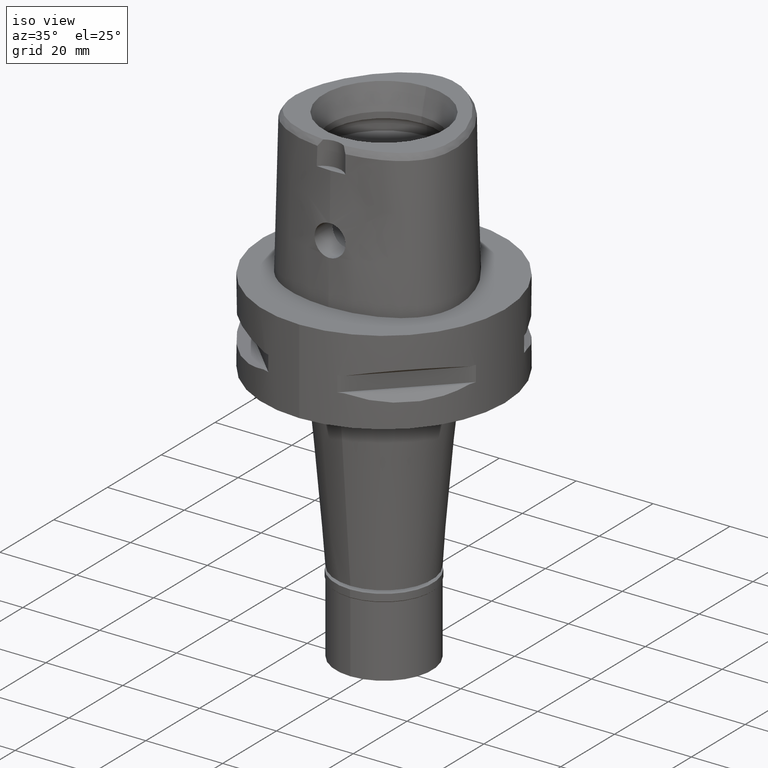
[diagram: clean part render]
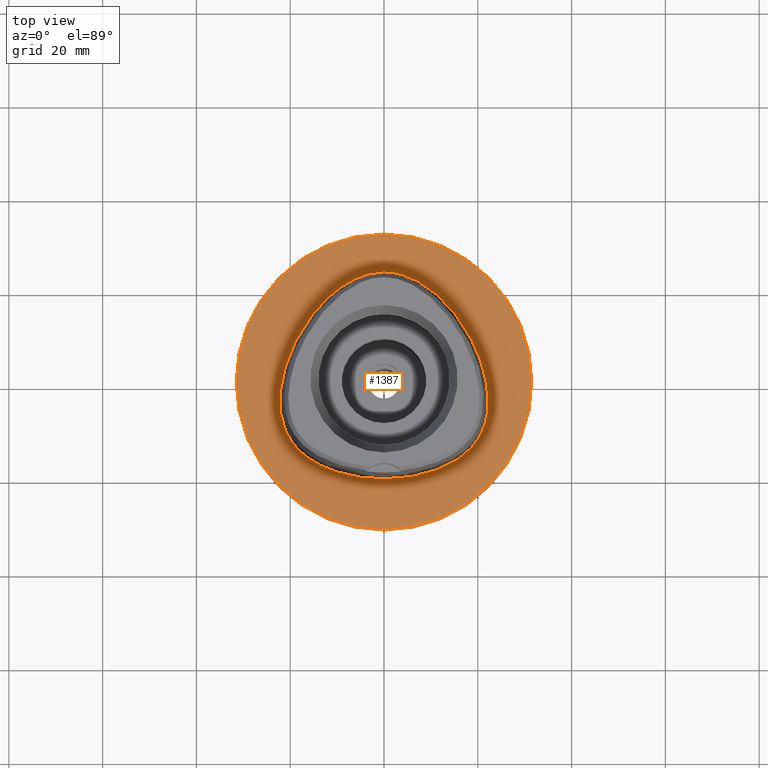
[diagram: tour spotlight — one face highlighted and labeled with its STEP entity id]
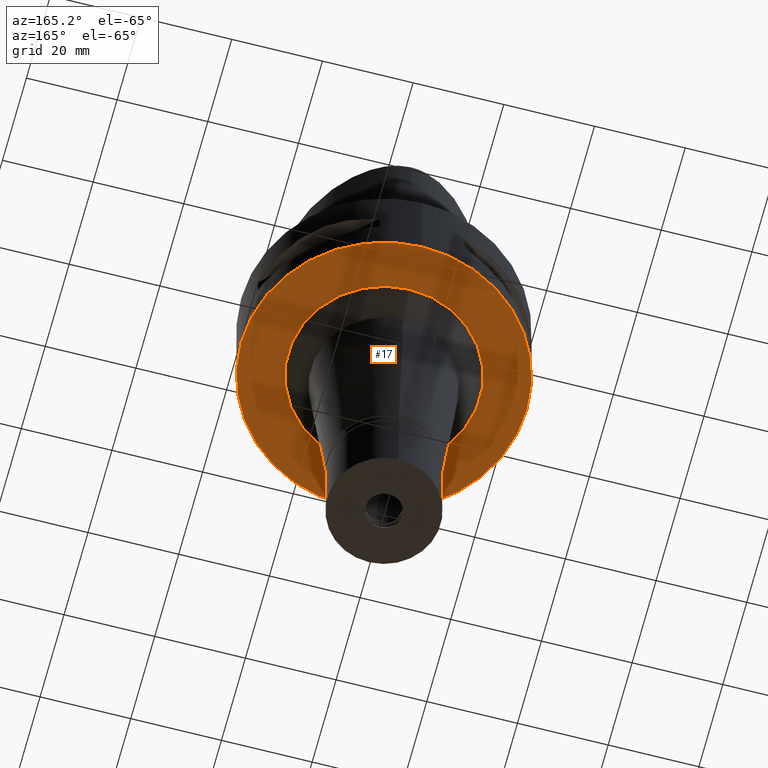
[diagram: tour spotlight — one face highlighted and labeled with its STEP entity id]
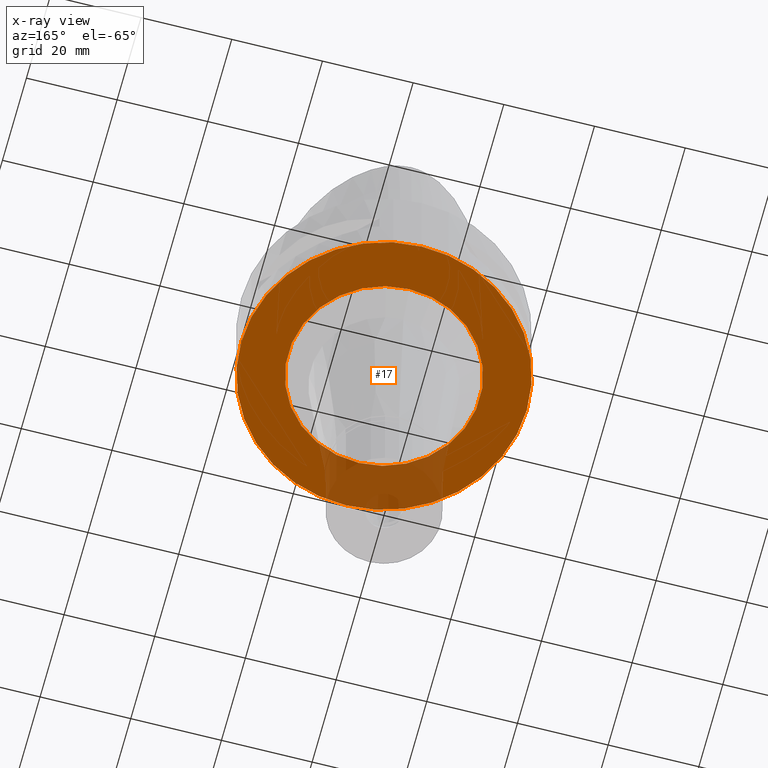
[diagram: x-ray of the same camera — body ghosted, this tour face saturated]
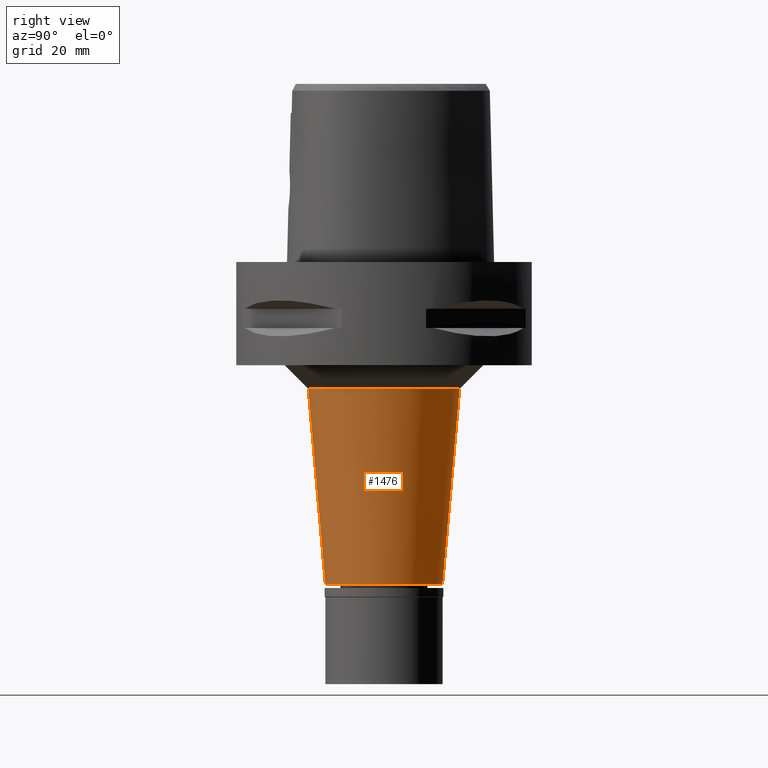
[diagram: tour spotlight — one face highlighted and labeled with its STEP entity id]
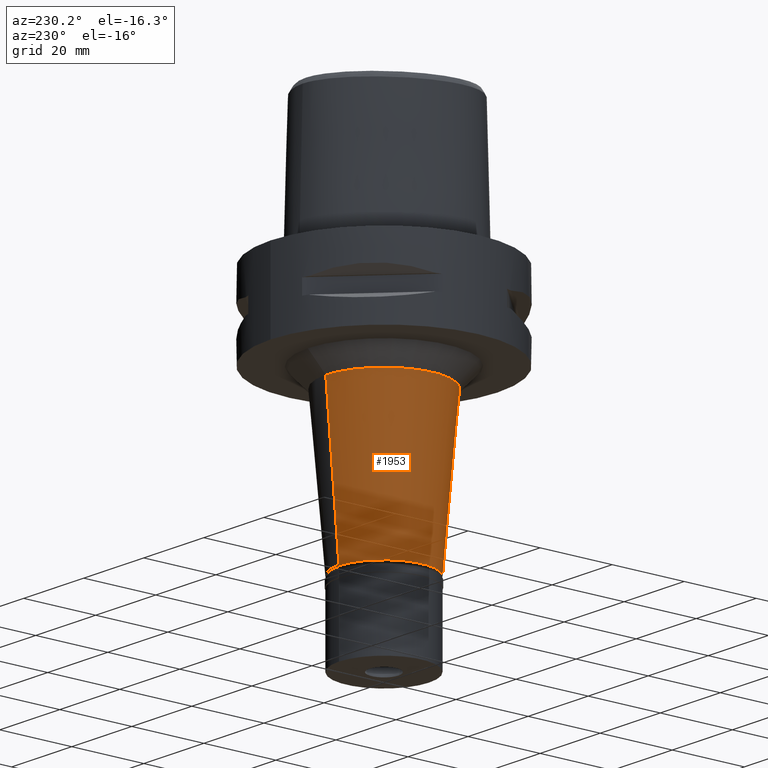
[diagram: tour spotlight — one face highlighted and labeled with its STEP entity id]
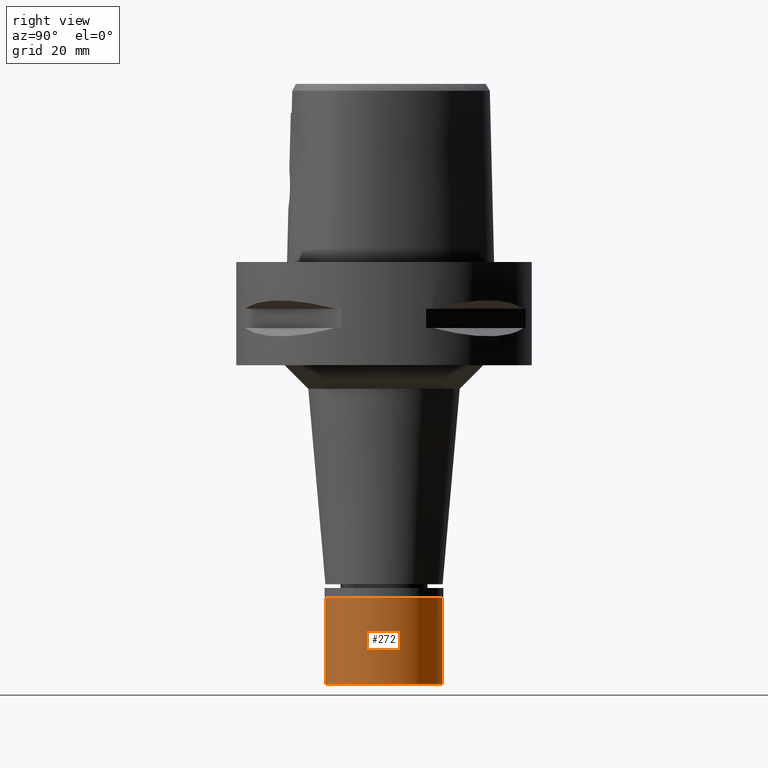
[diagram: tour spotlight — one face highlighted and labeled with its STEP entity id]
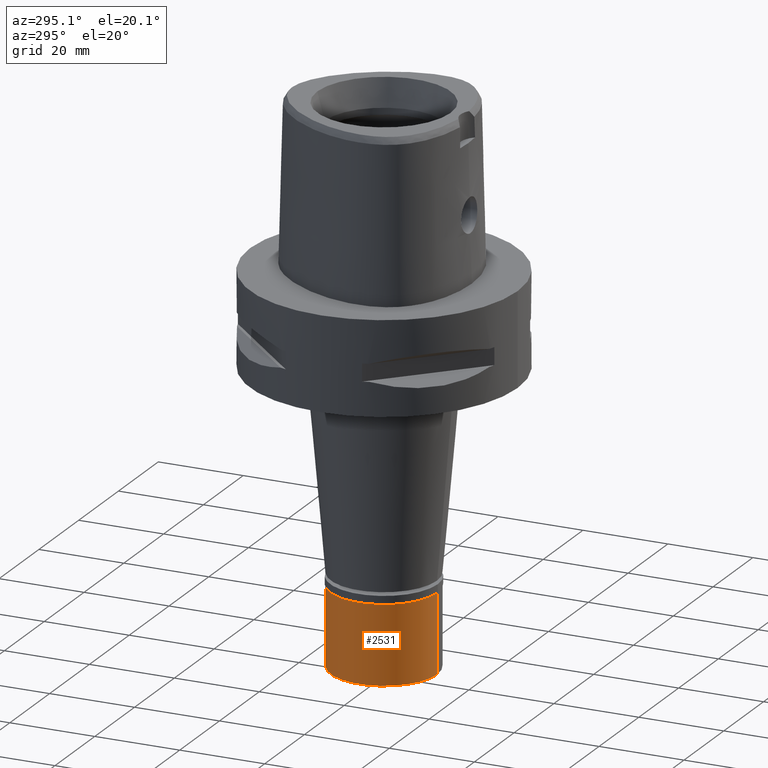
[diagram: tour spotlight — one face highlighted and labeled with its STEP entity id]
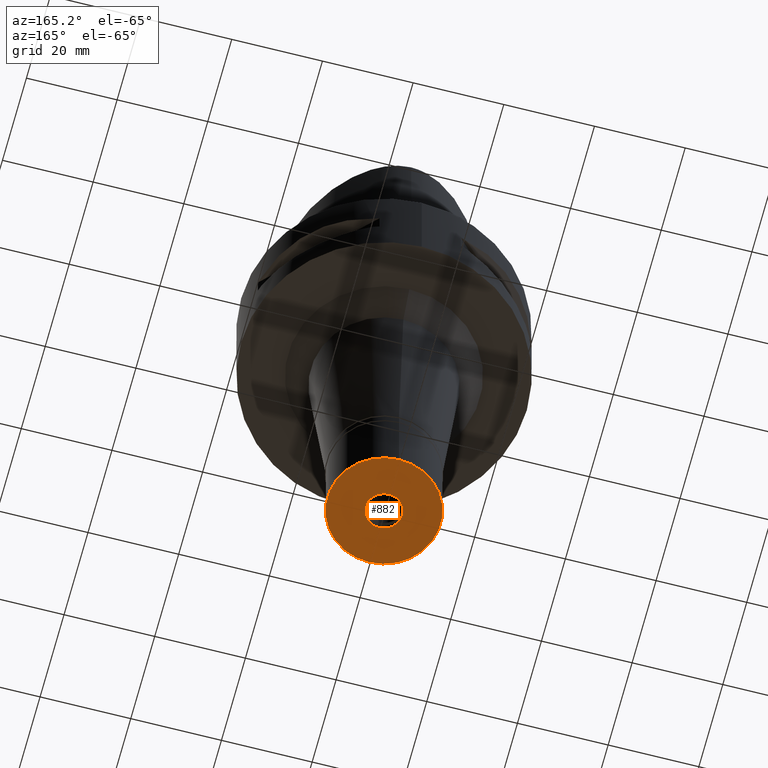
[diagram: tour spotlight — one face highlighted and labeled with its STEP entity id]
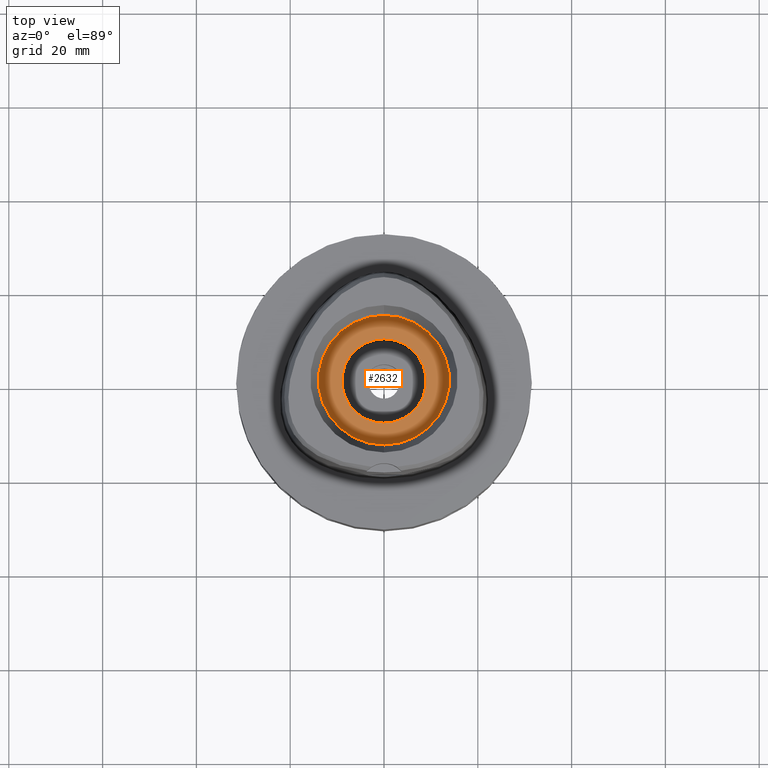
[diagram: tour spotlight — one face highlighted and labeled with its STEP entity id]
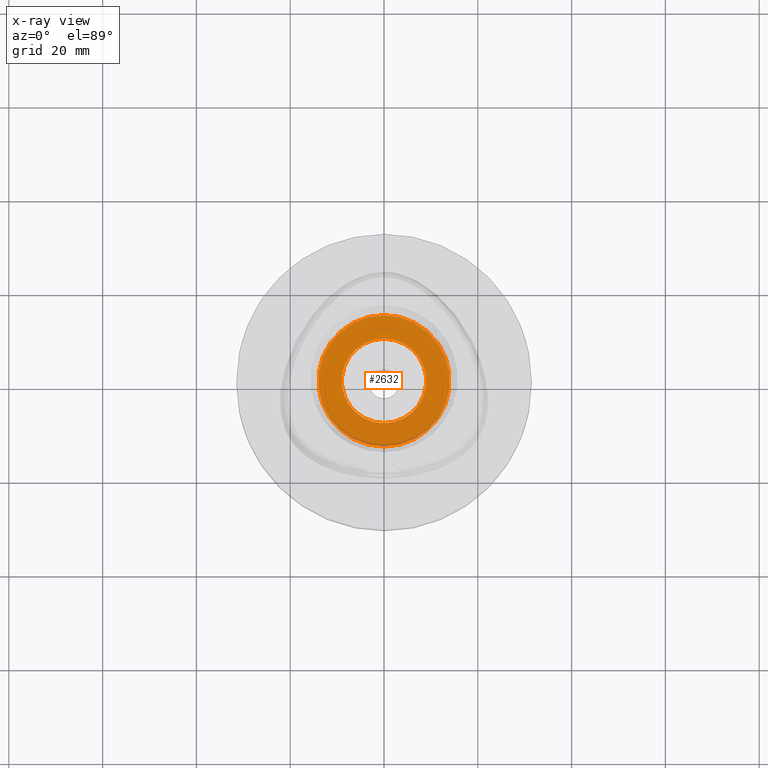
[diagram: x-ray of the same camera — body ghosted, this tour face saturated]
A machine part: a face-by-face anatomy tour. The part has 100 B-rep faces; the first image is the clean iso view, then the 8 largest visible faces are spotlighted one at a time (largest first), each with its STEP entity span.

Face 1 — top view, entity #1387. In plain terms, the highlighted planar face has unit normal (0, 0, -1).
Definition (entity closure, byte-faithful):
#38 = CARTESIAN_POINT ( 'NONE',  ( -19.64947365080064046, -12.82525390055558390, 3.868621856781100099E-07 ) ) ;
#59 = CARTESIAN_POINT ( 'NONE',  ( 16.95889173172293596, -15.67838867924317725, -3.730970698405736141E-07 ) ) ;
#102 = EDGE_CURVE ( 'NONE', #4954, #4689, #4805, .T. ) ;
#184 = DIRECTION ( 'NONE',  ( 0.0000000000000000000, 0.0000000000000000000, -1.000000000000000000 ) ) ;
#234 = FACE_OUTER_BOUND ( 'NONE', #410, .T. ) ;
#410 = EDGE_LOOP ( 'NONE', ( #483, #1833 ) ) ;
#422 = CARTESIAN_POINT ( 'NONE',  ( -14.67337963939701062, -17.21410155407379250, 3.868621856781100099E-07 ) ) ;
#449 = CARTESIAN_POINT ( 'NONE',  ( -20.93173251326372153, -10.60431640231872663, 3.868621856781100099E-07 ) ) ;
#471 = CARTESIAN_POINT ( 'NONE',  ( 5.098437020765691940, 22.52602539932336612, -3.730970698405736141E-07 ) ) ;
#478 = EDGE_CURVE ( 'NONE', #725, #1293, #4224, .T. ) ;
#483 = ORIENTED_EDGE ( 'NONE', *, *, #4499, .F. ) ;
#525 = CIRCLE ( 'NONE', #1759, 31.50000000000000000 ) ;
#682 = CARTESIAN_POINT ( 'NONE',  ( -7.571159429451234324, 21.31457030413115561, 3.868621856781100099E-07 ) ) ;
#725 = VERTEX_POINT ( 'NONE', #2462 ) ;
#798 = CARTESIAN_POINT ( 'NONE',  ( -11.23259756395300712, -18.89324217836399455, 3.868621856781100099E-07 ) ) ;
#819 = CARTESIAN_POINT ( 'NONE',  ( 21.97832648709969305, -0.2810937483681231752, -3.730970698405736141E-07 ) ) ;
#841 = CARTESIAN_POINT ( 'NONE',  ( -20.34961797717719989, -11.74885741702791542, 3.868621856781100099E-07 ) ) ;
#864 = CARTESIAN_POINT ( 'NONE',  ( 22.24453908790848544, -4.100468749944757185, -3.730970698405736141E-07 ) ) ;
#1013 = FACE_BOUND ( 'NONE', #2714, .T. ) ;
#1058 = B_SPLINE_CURVE_WITH_KNOTS ( 'NONE', 3,
 ( #3752, #3341, #1403, #4191, #682, #1127, #1610, #2738, #1970, #5073, #3543, #1509, #2301, #449, #841, #38, #1948, #3496, #422, #798, #4268, #3171, #2763 ),
 .UNSPECIFIED., .F., .F.,
 ( 4, 1, 1, 1, 1, 1, 1, 1, 1, 1, 1, 1, 1, 1, 1, 1, 1, 1, 1, 1, 4 ),
 ( 0.0000000000000000000, 0.04166666666755999837, 0.08333333333417000666, 0.1250000000007999990, 0.1666666666674000152, 0.2500000000006000200, 0.3333333333337999971, 0.4166666666671000052, 0.5000000000004000134, 0.5416666666670000296, 0.5833333333336000459, 0.6250000000001999512, 0.6458333333335000148, 0.6666666666668999985, 0.6875000000001000311, 0.7083333333333999837, 0.7500000000001000311, 0.7916666666667000474, 0.8333333333333000637, 0.9166666666666000163, 1.000000000000000000 ),
 .UNSPECIFIED. ) ;
#1127 = CARTESIAN_POINT ( 'NONE',  ( -10.74572890433480943, 19.17433593005469561, 3.868621856781100099E-07 ) ) ;
#1149 = CARTESIAN_POINT ( 'NONE',  ( 22.05732875249668012, -6.847636720082372008, -3.730970698405736141E-07 ) ) ;
#1221 = CARTESIAN_POINT ( 'NONE',  ( 21.55524826906709279, -8.996025393291422034, -3.730970698405736141E-07 ) ) ;
#1244 = CARTESIAN_POINT ( 'NONE',  ( 2.564517728873337621, 23.29328125918508263, -3.730970698405736141E-07 ) ) ;
#1293 = VERTEX_POINT ( 'NONE', #1660 ) ;
#1387 = ADVANCED_FACE ( 'NONE', ( #234, #1013 ), #3313, .F. ) ;
#1403 = CARTESIAN_POINT ( 'NONE',  ( -2.564517724969215706, 23.29328124047876614, 3.868621856781100099E-07 ) ) ;
#1509 = CARTESIAN_POINT ( 'NONE',  ( -22.05732873360972235, -6.847636717367676873, 3.868621856781100099E-07 ) ) ;
#1531 = CARTESIAN_POINT ( 'NONE',  ( 11.23259757048031204, -18.89324219630504942, -3.730970698405736141E-07 ) ) ;
#1551 = CARTESIAN_POINT ( 'NONE',  ( 5.790292211696000582E-11, 23.47499999999000053, 1.448470972793999874E-13 ) ) ;
#1610 = CARTESIAN_POINT ( 'NONE',  ( -14.40795638215173113, 15.64093749372103659, 3.868621856781100099E-07 ) ) ;
#1660 = CARTESIAN_POINT ( 'NONE',  ( 0.0000000000000000000, 31.50000000000000000, 0.0000000000000000000 ) ) ;
#1759 = AXIS2_PLACEMENT_3D ( 'NONE', #2628, #184, #2651 ) ;
#1784 = DIRECTION ( 'NONE',  ( 0.0000000000000000000, 0.0000000000000000000, -1.000000000000000000 ) ) ;
#1822 = CARTESIAN_POINT ( 'NONE',  ( -1.131694588381000000E-11, -20.67499999999999716, 1.477336771434999891E-13 ) ) ;
#1833 = ORIENTED_EDGE ( 'NONE', *, *, #478, .F. ) ;
#1857 = AXIS2_PLACEMENT_3D ( 'NONE', #2978, #1784, #4541 ) ;
#1948 = CARTESIAN_POINT ( 'NONE',  ( -18.56841064437526612, -14.16937987614192984, 3.868621856781100099E-07 ) ) ;
#1970 = CARTESIAN_POINT ( 'NONE',  ( -20.74942739964291150, 4.657187496702960061, 3.868621856781100099E-07 ) ) ;
#2301 = CARTESIAN_POINT ( 'NONE',  ( -21.55524825079097440, -8.996025387860560940, 3.868621856781100099E-07 ) ) ;
#2364 = ORIENTED_EDGE ( 'NONE', *, *, #102, .F. ) ;
#2375 = CARTESIAN_POINT ( 'NONE',  ( 0.8548392429694808836, 23.47500000933032283, -3.730970698405736141E-07 ) ) ;
#2426 = CARTESIAN_POINT ( 'NONE',  ( 20.34961799365809298, -11.74885742654568332, -3.730970698405736141E-07 ) ) ;
#2462 = CARTESIAN_POINT ( 'NONE',  ( 0.0000000000000000000, -31.50000000000000000, 0.0000000000000000000 ) ) ;
#2628 = CARTESIAN_POINT ( 'NONE',  ( 0.0000000000000000000, 0.0000000000000000000, 0.0000000000000000000 ) ) ;
#2651 = DIRECTION ( 'NONE',  ( 0.0000000000000000000, 1.000000000000000000, 0.0000000000000000000 ) ) ;
#2713 = CARTESIAN_POINT ( 'NONE',  ( 2.113823673620804477, -20.67500000932328419, -3.730970698405735612E-07 ) ) ;
#2714 = EDGE_LOOP ( 'NONE', ( #2749, #2364 ) ) ;
#2719 = AXIS2_PLACEMENT_3D ( 'NONE', #4079, #4886, #3335 ) ;
#2738 = CARTESIAN_POINT ( 'NONE',  ( -18.06826687685656552, 10.43171874514600006, 3.868621856781100099E-07 ) ) ;
#2749 = ORIENTED_EDGE ( 'NONE', *, *, #4427, .F. ) ;
#2763 = CARTESIAN_POINT ( 'NONE',  ( -1.131694588381000000E-11, -20.67499999999999716, 1.477336771434999891E-13 ) ) ;
#2807 = CARTESIAN_POINT ( 'NONE',  ( 20.74942741762478349, 4.657187503180171717, -3.730970698405736141E-07 ) ) ;
#2978 = CARTESIAN_POINT ( 'NONE',  ( 0.0000000000000000000, 0.0000000000000000000, 0.0000000000000000000 ) ) ;
#3119 = CARTESIAN_POINT ( 'NONE',  ( 18.06826689338142344, 10.43171875469453092, -3.730970698405736141E-07 ) ) ;
#3169 = CARTESIAN_POINT ( 'NONE',  ( 19.64947366619745139, -12.82525391174792162, -3.730970698405736141E-07 ) ) ;
#3171 = CARTESIAN_POINT ( 'NONE',  ( -2.113823672490067640, -20.67499999033125491, 3.868621856781100099E-07 ) ) ;
#3313 = PLANE ( 'NONE',  #2719 ) ;
#3335 = DIRECTION ( 'NONE',  ( 0.0000000000000000000, -1.000000000000000000, 0.0000000000000000000 ) ) ;
#3341 = CARTESIAN_POINT ( 'NONE',  ( -0.8548392416143821837, 23.47499999033582441, 3.868621856781100099E-07 ) ) ;
#3470 = CARTESIAN_POINT ( 'NONE',  ( 14.67337964882909063, -17.21410157063168000, -3.730970698405736141E-07 ) ) ;
#3496 = CARTESIAN_POINT ( 'NONE',  ( -16.95889171993596634, -15.67838866423727850, 3.868621856781100099E-07 ) ) ;
#3520 = CARTESIAN_POINT ( 'NONE',  ( 14.40795639675080686, 15.64093750605859157, -3.730970698405736141E-07 ) ) ;
#3541 = CARTESIAN_POINT ( 'NONE',  ( -1.131694588381000000E-11, -20.67499999999999716, 1.477336771434999891E-13 ) ) ;
#3543 = CARTESIAN_POINT ( 'NONE',  ( -22.24453906884865262, -4.100468750056842637, 3.868621856781100099E-07 ) ) ;
#3752 = CARTESIAN_POINT ( 'NONE',  ( 5.790292211696000582E-11, 23.47499999999000053, 1.448470972793999874E-13 ) ) ;
#3980 = CARTESIAN_POINT ( 'NONE',  ( 10.74572891661843776, 19.17433594468571556, -3.730970698405736141E-07 ) ) ;
#4079 = CARTESIAN_POINT ( 'NONE',  ( 0.0000000000000000000, 0.0000000000000000000, 0.0000000000000000000 ) ) ;
#4191 = CARTESIAN_POINT ( 'NONE',  ( -5.098437013673422058, 22.52602538161582046, 3.868621856781100099E-07 ) ) ;
#4224 = CIRCLE ( 'NONE', #1857, 31.50000000000000000 ) ;
#4264 = CARTESIAN_POINT ( 'NONE',  ( 5.790292211696000582E-11, 23.47499999999000053, 1.448470972793999874E-13 ) ) ;
#4268 = CARTESIAN_POINT ( 'NONE',  ( -6.341471017493179652, -20.29812499043638852, 3.868621856781100099E-07 ) ) ;
#4427 = EDGE_CURVE ( 'NONE', #4689, #4954, #1058, .T. ) ;
#4499 = EDGE_CURVE ( 'NONE', #1293, #725, #525, .T. ) ;
#4541 = DIRECTION ( 'NONE',  ( 0.0000000000000000000, -1.000000000000000000, 0.0000000000000000000 ) ) ;
#4647 = CARTESIAN_POINT ( 'NONE',  ( 20.93173253064983541, -10.60431641004418069, -3.730970698405736141E-07 ) ) ;
#4689 = VERTEX_POINT ( 'NONE', #1551 ) ;
#4728 = CARTESIAN_POINT ( 'NONE',  ( 18.56841065820787051, -14.16937988924293457, -3.730970698405736141E-07 ) ) ;
#4805 = B_SPLINE_CURVE_WITH_KNOTS ( 'NONE', 3,
 ( #3541, #2713, #5046, #1531, #3470, #59, #4728, #3169, #2426, #4647, #1221, #1149, #864, #819, #2807, #3119, #3520, #3980, #5071, #471, #1244, #2375, #4264 ),
 .UNSPECIFIED., .F., .F.,
 ( 4, 1, 1, 1, 1, 1, 1, 1, 1, 1, 1, 1, 1, 1, 1, 1, 1, 1, 1, 1, 4 ),
 ( 0.0000000000000000000, 0.08333333333344000726, 0.1666666666668000230, 0.2083333333333000081, 0.2500000000000000000, 0.2916666666666999919, 0.3125000000000000000, 0.3333333333333000081, 0.3541666666666999919, 0.3750000000000000000, 0.4166666666666000163, 0.4583333333332000326, 0.4999999999998999689, 0.5833333333332000326, 0.6666666666664999852, 0.7499999999998000488, 0.8333333333329999704, 0.8749999999997000177, 0.9166666666664000651, 0.9583333333329999704, 1.000000000000000000 ),
 .UNSPECIFIED. ) ;
#4886 = DIRECTION ( 'NONE',  ( 0.0000000000000000000, 0.0000000000000000000, -1.000000000000000000 ) ) ;
#4954 = VERTEX_POINT ( 'NONE', #1822 ) ;
#5046 = CARTESIAN_POINT ( 'NONE',  ( 6.341471020869423825, -20.29812500923171470, -3.730970698405736671E-07 ) ) ;
#5071 = CARTESIAN_POINT ( 'NONE',  ( 7.571159439076462938, 21.31457032057632617, -3.730970698405736141E-07 ) ) ;
#5073 = CARTESIAN_POINT ( 'NONE',  ( -21.97832646828880598, -0.2810937516920624102, 3.868621856781100099E-07 ) ) ;

Face 2 — auxiliary view, entity #17. An x-ray twin of the same camera follows (body ghosted, this face saturated) — the face is partly hidden behind the body. In plain terms, the highlighted planar face has unit normal (0, 0, -1).
Definition (entity closure, byte-faithful):
#3 = DIRECTION ( 'NONE',  ( 0.0000000000000000000, 0.0000000000000000000, -1.000000000000000000 ) ) ;
#17 = ADVANCED_FACE ( 'NONE', ( #563, #3606 ), #1668, .T. ) ;
#39 = DIRECTION ( 'NONE',  ( 0.0000000000000000000, 0.0000000000000000000, -1.000000000000000000 ) ) ;
#83 = EDGE_LOOP ( 'NONE', ( #3104, #987 ) ) ;
#162 = CARTESIAN_POINT ( 'NONE',  ( 0.0000000000000000000, 21.14827726903000027, -22.00000000000000000 ) ) ;
#563 = FACE_OUTER_BOUND ( 'NONE', #83, .T. ) ;
#584 = DIRECTION ( 'NONE',  ( 0.0000000000000000000, -1.000000000000000000, 0.0000000000000000000 ) ) ;
#697 = DIRECTION ( 'NONE',  ( 0.0000000000000000000, 0.0000000000000000000, 1.000000000000000000 ) ) ;
#903 = AXIS2_PLACEMENT_3D ( 'NONE', #4500, #4524, #584 ) ;
#987 = ORIENTED_EDGE ( 'NONE', *, *, #3372, .F. ) ;
#994 = AXIS2_PLACEMENT_3D ( 'NONE', #2402, #39, #3953 ) ;
#1253 = EDGE_CURVE ( 'NONE', #2762, #3133, #3779, .T. ) ;
#1335 = ORIENTED_EDGE ( 'NONE', *, *, #1253, .F. ) ;
#1574 = VERTEX_POINT ( 'NONE', #1891 ) ;
#1654 = CARTESIAN_POINT ( 'NONE',  ( 0.0000000000000000000, 31.50000000000000000, -22.00000000000000000 ) ) ;
#1668 = PLANE ( 'NONE',  #903 ) ;
#1891 = CARTESIAN_POINT ( 'NONE',  ( 0.0000000000000000000, -31.50000000000000000, -22.00000000000000000 ) ) ;
#1931 = AXIS2_PLACEMENT_3D ( 'NONE', #4258, #3, #2344 ) ;
#2011 = DIRECTION ( 'NONE',  ( 0.0000000000000000000, 0.0000000000000000000, 1.000000000000000000 ) ) ;
#2105 = VERTEX_POINT ( 'NONE', #1654 ) ;
#2239 = CARTESIAN_POINT ( 'NONE',  ( 0.0000000000000000000, 0.0000000000000000000, -22.00000000000000000 ) ) ;
#2344 = DIRECTION ( 'NONE',  ( 0.0000000000000000000, 1.000000000000000000, 0.0000000000000000000 ) ) ;
#2402 = CARTESIAN_POINT ( 'NONE',  ( 0.0000000000000000000, 0.0000000000000000000, -22.00000000000000000 ) ) ;
#2442 = CARTESIAN_POINT ( 'NONE',  ( 0.0000000000000000000, -21.14827726903000027, -22.00000000000000000 ) ) ;
#2535 = EDGE_CURVE ( 'NONE', #3133, #2762, #3232, .T. ) ;
#2565 = EDGE_CURVE ( 'NONE', #2105, #1574, #2897, .T. ) ;
#2762 = VERTEX_POINT ( 'NONE', #2442 ) ;
#2780 = DIRECTION ( 'NONE',  ( 0.0000000000000000000, 1.000000000000000000, 0.0000000000000000000 ) ) ;
#2897 = CIRCLE ( 'NONE', #4698, 31.50000000000000000 ) ;
#3104 = ORIENTED_EDGE ( 'NONE', *, *, #2565, .F. ) ;
#3133 = VERTEX_POINT ( 'NONE', #162 ) ;
#3232 = CIRCLE ( 'NONE', #1931, 21.14827726903000027 ) ;
#3304 = ORIENTED_EDGE ( 'NONE', *, *, #2535, .F. ) ;
#3372 = EDGE_CURVE ( 'NONE', #1574, #2105, #4329, .T. ) ;
#3426 = AXIS2_PLACEMENT_3D ( 'NONE', #2239, #697, #3864 ) ;
#3513 = CARTESIAN_POINT ( 'NONE',  ( 0.0000000000000000000, 0.0000000000000000000, -22.00000000000000000 ) ) ;
#3606 = FACE_BOUND ( 'NONE', #4970, .T. ) ;
#3779 = CIRCLE ( 'NONE', #994, 21.14827726903000027 ) ;
#3864 = DIRECTION ( 'NONE',  ( 0.0000000000000000000, -1.000000000000000000, 0.0000000000000000000 ) ) ;
#3953 = DIRECTION ( 'NONE',  ( 0.0000000000000000000, -1.000000000000000000, 0.0000000000000000000 ) ) ;
#4258 = CARTESIAN_POINT ( 'NONE',  ( 0.0000000000000000000, 0.0000000000000000000, -22.00000000000000000 ) ) ;
#4329 = CIRCLE ( 'NONE', #3426, 31.50000000000000000 ) ;
#4500 = CARTESIAN_POINT ( 'NONE',  ( 0.0000000000000000000, 0.0000000000000000000, -22.00000000000000000 ) ) ;
#4524 = DIRECTION ( 'NONE',  ( 0.0000000000000000000, 0.0000000000000000000, -1.000000000000000000 ) ) ;
#4698 = AXIS2_PLACEMENT_3D ( 'NONE', #3513, #2011, #2780 ) ;
#4970 = EDGE_LOOP ( 'NONE', ( #3304, #1335 ) ) ;

Face 3 — right view, entity #1476. In plain terms, the highlighted conical surface has half-angle 5 deg.
Definition (entity closure, byte-faithful):
#382 = ORIENTED_EDGE ( 'NONE', *, *, #3437, .T. ) ;
#450 = DIRECTION ( 'NONE',  ( 0.0000000000000000000, -1.000000000000000000, 0.0000000000000000000 ) ) ;
#464 = CARTESIAN_POINT ( 'NONE',  ( 0.0000000000000000000, 16.14827726903000027, -27.00000000000000000 ) ) ;
#648 = CIRCLE ( 'NONE', #3509, 12.50000000000000000 ) ;
#781 = LINE ( 'NONE', #1575, #2453 ) ;
#855 = CARTESIAN_POINT ( 'NONE',  ( 0.0000000000000000000, 16.14827726903000027, -27.00000000000000000 ) ) ;
#1105 = CARTESIAN_POINT ( 'NONE',  ( 0.0000000000000000000, 12.50000000000000000, -68.70000000000000284 ) ) ;
#1254 = EDGE_CURVE ( 'NONE', #2189, #2750, #1404, .T. ) ;
#1338 = CARTESIAN_POINT ( 'NONE',  ( 0.0000000000000000000, -12.50000000000000000, -68.70000000000000284 ) ) ;
#1404 = CIRCLE ( 'NONE', #2952, 16.14827726904000116 ) ;
#1476 = ADVANCED_FACE ( 'NONE', ( #1977 ), #4093, .T. ) ;
#1575 = CARTESIAN_POINT ( 'NONE',  ( 0.0000000000000000000, -16.14827726903000027, -27.00000000000000000 ) ) ;
#1622 = DIRECTION ( 'NONE',  ( 0.0000000000000000000, 0.0000000000000000000, 1.000000000000000000 ) ) ;
#1686 = ORIENTED_EDGE ( 'NONE', *, *, #1254, .F. ) ;
#1832 = VECTOR ( 'NONE', #3258, 1000.000000000000114 ) ;
#1896 = AXIS2_PLACEMENT_3D ( 'NONE', #2309, #4326, #3554 ) ;
#1977 = FACE_OUTER_BOUND ( 'NONE', #4305, .T. ) ;
#2189 = VERTEX_POINT ( 'NONE', #4206 ) ;
#2309 = CARTESIAN_POINT ( 'NONE',  ( 0.0000000000000000000, 0.0000000000000000000, -47.84999999999999432 ) ) ;
#2342 = DIRECTION ( 'NONE',  ( 0.0000000000000000000, 0.08715574274763414342, -0.9961946980917475436 ) ) ;
#2453 = VECTOR ( 'NONE', #2342, 1000.000000000000114 ) ;
#2479 = DIRECTION ( 'NONE',  ( 0.0000000000000000000, 0.0000000000000000000, 1.000000000000000000 ) ) ;
#2750 = VERTEX_POINT ( 'NONE', #855 ) ;
#2757 = EDGE_CURVE ( 'NONE', #2750, #5005, #3971, .T. ) ;
#2952 = AXIS2_PLACEMENT_3D ( 'NONE', #3246, #2479, #450 ) ;
#3246 = CARTESIAN_POINT ( 'NONE',  ( 0.0000000000000000000, 0.0000000000000000000, -27.00000000000000000 ) ) ;
#3258 = DIRECTION ( 'NONE',  ( 0.0000000000000000000, -0.08715574274763414342, -0.9961946980917475436 ) ) ;
#3437 = EDGE_CURVE ( 'NONE', #4725, #5005, #648, .T. ) ;
#3441 = EDGE_CURVE ( 'NONE', #2189, #4725, #781, .T. ) ;
#3509 = AXIS2_PLACEMENT_3D ( 'NONE', #3581, #1622, #3941 ) ;
#3554 = DIRECTION ( 'NONE',  ( 0.0000000000000000000, 1.000000000000000000, 0.0000000000000000000 ) ) ;
#3581 = CARTESIAN_POINT ( 'NONE',  ( 0.0000000000000000000, 0.0000000000000000000, -68.70000000000000284 ) ) ;
#3815 = ORIENTED_EDGE ( 'NONE', *, *, #2757, .F. ) ;
#3941 = DIRECTION ( 'NONE',  ( 0.0000000000000000000, -1.000000000000000000, 0.0000000000000000000 ) ) ;
#3971 = LINE ( 'NONE', #464, #1832 ) ;
#4093 = CONICAL_SURFACE ( 'NONE', #1896, 14.32413863452000058, 0.08726646259969973729 ) ;
#4206 = CARTESIAN_POINT ( 'NONE',  ( 0.0000000000000000000, -16.14827726903000027, -27.00000000000000000 ) ) ;
#4305 = EDGE_LOOP ( 'NONE', ( #1686, #4792, #382, #3815 ) ) ;
#4326 = DIRECTION ( 'NONE',  ( 0.0000000000000000000, 0.0000000000000000000, 1.000000000000000000 ) ) ;
#4725 = VERTEX_POINT ( 'NONE', #1338 ) ;
#4792 = ORIENTED_EDGE ( 'NONE', *, *, #3441, .T. ) ;
#5005 = VERTEX_POINT ( 'NONE', #1105 ) ;

Face 4 — auxiliary view, entity #1953. In plain terms, the highlighted conical surface has half-angle 5 deg.
Definition (entity closure, byte-faithful):
#464 = CARTESIAN_POINT ( 'NONE',  ( 0.0000000000000000000, 16.14827726903000027, -27.00000000000000000 ) ) ;
#549 = ORIENTED_EDGE ( 'NONE', *, *, #2757, .T. ) ;
#781 = LINE ( 'NONE', #1575, #2453 ) ;
#855 = CARTESIAN_POINT ( 'NONE',  ( 0.0000000000000000000, 16.14827726903000027, -27.00000000000000000 ) ) ;
#1103 = CIRCLE ( 'NONE', #2568, 16.14827726903000027 ) ;
#1105 = CARTESIAN_POINT ( 'NONE',  ( 0.0000000000000000000, 12.50000000000000000, -68.70000000000000284 ) ) ;
#1300 = CIRCLE ( 'NONE', #2610, 12.50000000000000000 ) ;
#1338 = CARTESIAN_POINT ( 'NONE',  ( 0.0000000000000000000, -12.50000000000000000, -68.70000000000000284 ) ) ;
#1456 = EDGE_LOOP ( 'NONE', ( #4791, #4764, #2775, #549 ) ) ;
#1575 = CARTESIAN_POINT ( 'NONE',  ( 0.0000000000000000000, -16.14827726903000027, -27.00000000000000000 ) ) ;
#1593 = DIRECTION ( 'NONE',  ( 0.0000000000000000000, 1.000000000000000000, 0.0000000000000000000 ) ) ;
#1832 = VECTOR ( 'NONE', #3258, 1000.000000000000114 ) ;
#1953 = ADVANCED_FACE ( 'NONE', ( #3061 ), #1967, .T. ) ;
#1967 = CONICAL_SURFACE ( 'NONE', #4080, 14.32413863452000058, 0.08726646259969973729 ) ;
#2189 = VERTEX_POINT ( 'NONE', #4206 ) ;
#2342 = DIRECTION ( 'NONE',  ( 0.0000000000000000000, 0.08715574274763414342, -0.9961946980917475436 ) ) ;
#2453 = VECTOR ( 'NONE', #2342, 1000.000000000000114 ) ;
#2568 = AXIS2_PLACEMENT_3D ( 'NONE', #3077, #3858, #2998 ) ;
#2610 = AXIS2_PLACEMENT_3D ( 'NONE', #4895, #4501, #4581 ) ;
#2750 = VERTEX_POINT ( 'NONE', #855 ) ;
#2757 = EDGE_CURVE ( 'NONE', #2750, #5005, #3971, .T. ) ;
#2775 = ORIENTED_EDGE ( 'NONE', *, *, #5026, .T. ) ;
#2998 = DIRECTION ( 'NONE',  ( 0.0000000000000000000, -1.000000000000000000, 0.0000000000000000000 ) ) ;
#3061 = FACE_OUTER_BOUND ( 'NONE', #1456, .T. ) ;
#3077 = CARTESIAN_POINT ( 'NONE',  ( 0.0000000000000000000, 0.0000000000000000000, -27.00000000000000000 ) ) ;
#3258 = DIRECTION ( 'NONE',  ( 0.0000000000000000000, -0.08715574274763414342, -0.9961946980917475436 ) ) ;
#3441 = EDGE_CURVE ( 'NONE', #2189, #4725, #781, .T. ) ;
#3858 = DIRECTION ( 'NONE',  ( 0.0000000000000000000, 0.0000000000000000000, -1.000000000000000000 ) ) ;
#3868 = EDGE_CURVE ( 'NONE', #5005, #4725, #1300, .T. ) ;
#3892 = CARTESIAN_POINT ( 'NONE',  ( 0.0000000000000000000, 0.0000000000000000000, -47.84999999999999432 ) ) ;
#3916 = DIRECTION ( 'NONE',  ( 0.0000000000000000000, 0.0000000000000000000, 1.000000000000000000 ) ) ;
#3971 = LINE ( 'NONE', #464, #1832 ) ;
#4080 = AXIS2_PLACEMENT_3D ( 'NONE', #3892, #3916, #1593 ) ;
#4206 = CARTESIAN_POINT ( 'NONE',  ( 0.0000000000000000000, -16.14827726903000027, -27.00000000000000000 ) ) ;
#4501 = DIRECTION ( 'NONE',  ( 0.0000000000000000000, 0.0000000000000000000, 1.000000000000000000 ) ) ;
#4581 = DIRECTION ( 'NONE',  ( 0.0000000000000000000, 1.000000000000000000, 0.0000000000000000000 ) ) ;
#4725 = VERTEX_POINT ( 'NONE', #1338 ) ;
#4764 = ORIENTED_EDGE ( 'NONE', *, *, #3441, .F. ) ;
#4791 = ORIENTED_EDGE ( 'NONE', *, *, #3868, .T. ) ;
#4895 = CARTESIAN_POINT ( 'NONE',  ( 0.0000000000000000000, 0.0000000000000000000, -68.70000000000000284 ) ) ;
#5005 = VERTEX_POINT ( 'NONE', #1105 ) ;
#5026 = EDGE_CURVE ( 'NONE', #2189, #2750, #1103, .T. ) ;

Face 5 — right view, entity #272. In plain terms, the highlighted cylindrical surface (partial cylindrical patch) has radius 12.5 mm, axis along (0, 0, -1).
Definition (entity closure, byte-faithful):
#272 = ADVANCED_FACE ( 'NONE', ( #965 ), #3693, .T. ) ;
#457 = VECTOR ( 'NONE', #2950, 1000.000000000000000 ) ;
#502 = EDGE_CURVE ( 'NONE', #4201, #4835, #596, .T. ) ;
#548 = DIRECTION ( 'NONE',  ( 0.0000000000000000000, 0.0000000000000000000, -1.000000000000000000 ) ) ;
#596 = LINE ( 'NONE', #2218, #457 ) ;
#612 = CARTESIAN_POINT ( 'NONE',  ( 0.0000000000000000000, 0.0000000000000000000, -2.000000000000000000 ) ) ;
#670 = VERTEX_POINT ( 'NONE', #2845 ) ;
#965 = FACE_OUTER_BOUND ( 'NONE', #3689, .T. ) ;
#986 = DIRECTION ( 'NONE',  ( 0.0000000000000000000, -1.000000000000000000, 0.0000000000000000000 ) ) ;
#1755 = CARTESIAN_POINT ( 'NONE',  ( 0.0000000000000000000, 12.50000000000000000, -2.000000000000000000 ) ) ;
#1838 = CIRCLE ( 'NONE', #2894, 12.50000000000000000 ) ;
#1920 = DIRECTION ( 'NONE',  ( 0.0000000000000000000, -1.000000000000000000, 0.0000000000000000000 ) ) ;
#1978 = ORIENTED_EDGE ( 'NONE', *, *, #5048, .F. ) ;
#2095 = VERTEX_POINT ( 'NONE', #1755 ) ;
#2184 = DIRECTION ( 'NONE',  ( 0.0000000000000000000, 0.0000000000000000000, -1.000000000000000000 ) ) ;
#2218 = CARTESIAN_POINT ( 'NONE',  ( 0.0000000000000000000, -12.50000000000000000, -2.000000000000000000 ) ) ;
#2272 = ORIENTED_EDGE ( 'NONE', *, *, #4883, .T. ) ;
#2486 = CIRCLE ( 'NONE', #4520, 12.50000000000000000 ) ;
#2845 = CARTESIAN_POINT ( 'NONE',  ( 0.0000000000000000000, 12.50000000000000000, -20.50000000000000000 ) ) ;
#2894 = AXIS2_PLACEMENT_3D ( 'NONE', #612, #2184, #4868 ) ;
#2925 = EDGE_CURVE ( 'NONE', #4835, #670, #2486, .T. ) ;
#2950 = DIRECTION ( 'NONE',  ( 0.0000000000000000000, 0.0000000000000000000, -1.000000000000000000 ) ) ;
#3287 = CARTESIAN_POINT ( 'NONE',  ( 0.0000000000000000000, 0.0000000000000000000, 0.0000000000000000000 ) ) ;
#3454 = CARTESIAN_POINT ( 'NONE',  ( 0.0000000000000000000, 12.50000000000000000, -2.000000000000000000 ) ) ;
#3647 = ORIENTED_EDGE ( 'NONE', *, *, #502, .T. ) ;
#3655 = CARTESIAN_POINT ( 'NONE',  ( 0.0000000000000000000, -12.50000000000000000, -2.000000000000000000 ) ) ;
#3689 = EDGE_LOOP ( 'NONE', ( #2272, #3647, #4267, #1978 ) ) ;
#3693 = CYLINDRICAL_SURFACE ( 'NONE', #4318, 12.50000000000000000 ) ;
#3757 = LINE ( 'NONE', #3454, #4699 ) ;
#4201 = VERTEX_POINT ( 'NONE', #3655 ) ;
#4243 = CARTESIAN_POINT ( 'NONE',  ( 0.0000000000000000000, 0.0000000000000000000, -20.50000000000000000 ) ) ;
#4267 = ORIENTED_EDGE ( 'NONE', *, *, #2925, .T. ) ;
#4318 = AXIS2_PLACEMENT_3D ( 'NONE', #3287, #548, #986 ) ;
#4520 = AXIS2_PLACEMENT_3D ( 'NONE', #4243, #4941, #1920 ) ;
#4699 = VECTOR ( 'NONE', #5027, 1000.000000000000000 ) ;
#4835 = VERTEX_POINT ( 'NONE', #4845 ) ;
#4845 = CARTESIAN_POINT ( 'NONE',  ( 0.0000000000000000000, -12.50000000000000000, -20.50000000000000000 ) ) ;
#4868 = DIRECTION ( 'NONE',  ( 0.0000000000000000000, 1.000000000000000000, 0.0000000000000000000 ) ) ;
#4883 = EDGE_CURVE ( 'NONE', #2095, #4201, #1838, .T. ) ;
#4941 = DIRECTION ( 'NONE',  ( 0.0000000000000000000, 0.0000000000000000000, 1.000000000000000000 ) ) ;
#5027 = DIRECTION ( 'NONE',  ( 0.0000000000000000000, 0.0000000000000000000, -1.000000000000000000 ) ) ;
#5048 = EDGE_CURVE ( 'NONE', #2095, #670, #3757, .T. ) ;

Face 6 — auxiliary view, entity #2531. In plain terms, the highlighted cylindrical surface (partial cylindrical patch) has radius 12.5 mm, axis along (0, 0, -1).
Definition (entity closure, byte-faithful):
#433 = ORIENTED_EDGE ( 'NONE', *, *, #4662, .T. ) ;
#438 = DIRECTION ( 'NONE',  ( 0.0000000000000000000, 0.0000000000000000000, -1.000000000000000000 ) ) ;
#457 = VECTOR ( 'NONE', #2950, 1000.000000000000000 ) ;
#502 = EDGE_CURVE ( 'NONE', #4201, #4835, #596, .T. ) ;
#596 = LINE ( 'NONE', #2218, #457 ) ;
#670 = VERTEX_POINT ( 'NONE', #2845 ) ;
#750 = DIRECTION ( 'NONE',  ( 0.0000000000000000000, 0.0000000000000000000, 1.000000000000000000 ) ) ;
#806 = CARTESIAN_POINT ( 'NONE',  ( 0.0000000000000000000, 0.0000000000000000000, -20.50000000000000000 ) ) ;
#1141 = CYLINDRICAL_SURFACE ( 'NONE', #2986, 12.50000000000000000 ) ;
#1262 = DIRECTION ( 'NONE',  ( 0.0000000000000000000, 0.0000000000000000000, -1.000000000000000000 ) ) ;
#1498 = CARTESIAN_POINT ( 'NONE',  ( 0.0000000000000000000, 0.0000000000000000000, 0.0000000000000000000 ) ) ;
#1755 = CARTESIAN_POINT ( 'NONE',  ( 0.0000000000000000000, 12.50000000000000000, -2.000000000000000000 ) ) ;
#1927 = EDGE_CURVE ( 'NONE', #670, #4835, #3676, .T. ) ;
#1957 = EDGE_LOOP ( 'NONE', ( #3508, #4401, #433, #2130 ) ) ;
#2095 = VERTEX_POINT ( 'NONE', #1755 ) ;
#2130 = ORIENTED_EDGE ( 'NONE', *, *, #5048, .T. ) ;
#2218 = CARTESIAN_POINT ( 'NONE',  ( 0.0000000000000000000, -12.50000000000000000, -2.000000000000000000 ) ) ;
#2308 = DIRECTION ( 'NONE',  ( 0.0000000000000000000, 1.000000000000000000, 0.0000000000000000000 ) ) ;
#2411 = AXIS2_PLACEMENT_3D ( 'NONE', #4642, #1262, #2708 ) ;
#2531 = ADVANCED_FACE ( 'NONE', ( #4640 ), #1141, .T. ) ;
#2708 = DIRECTION ( 'NONE',  ( 0.0000000000000000000, -1.000000000000000000, 0.0000000000000000000 ) ) ;
#2845 = CARTESIAN_POINT ( 'NONE',  ( 0.0000000000000000000, 12.50000000000000000, -20.50000000000000000 ) ) ;
#2950 = DIRECTION ( 'NONE',  ( 0.0000000000000000000, 0.0000000000000000000, -1.000000000000000000 ) ) ;
#2986 = AXIS2_PLACEMENT_3D ( 'NONE', #1498, #438, #3899 ) ;
#3454 = CARTESIAN_POINT ( 'NONE',  ( 0.0000000000000000000, 12.50000000000000000, -2.000000000000000000 ) ) ;
#3508 = ORIENTED_EDGE ( 'NONE', *, *, #1927, .T. ) ;
#3655 = CARTESIAN_POINT ( 'NONE',  ( 0.0000000000000000000, -12.50000000000000000, -2.000000000000000000 ) ) ;
#3676 = CIRCLE ( 'NONE', #4574, 12.50000000000000000 ) ;
#3757 = LINE ( 'NONE', #3454, #4699 ) ;
#3899 = DIRECTION ( 'NONE',  ( 0.0000000000000000000, -1.000000000000000000, 0.0000000000000000000 ) ) ;
#4201 = VERTEX_POINT ( 'NONE', #3655 ) ;
#4401 = ORIENTED_EDGE ( 'NONE', *, *, #502, .F. ) ;
#4574 = AXIS2_PLACEMENT_3D ( 'NONE', #806, #750, #2308 ) ;
#4640 = FACE_OUTER_BOUND ( 'NONE', #1957, .T. ) ;
#4642 = CARTESIAN_POINT ( 'NONE',  ( 0.0000000000000000000, 0.0000000000000000000, -2.000000000000000000 ) ) ;
#4662 = EDGE_CURVE ( 'NONE', #4201, #2095, #4945, .T. ) ;
#4699 = VECTOR ( 'NONE', #5027, 1000.000000000000000 ) ;
#4835 = VERTEX_POINT ( 'NONE', #4845 ) ;
#4845 = CARTESIAN_POINT ( 'NONE',  ( 0.0000000000000000000, -12.50000000000000000, -20.50000000000000000 ) ) ;
#4945 = CIRCLE ( 'NONE', #2411, 12.50000000000000000 ) ;
#5027 = DIRECTION ( 'NONE',  ( 0.0000000000000000000, 0.0000000000000000000, -1.000000000000000000 ) ) ;
#5048 = EDGE_CURVE ( 'NONE', #2095, #670, #3757, .T. ) ;

Face 7 — auxiliary view, entity #882. In plain terms, the highlighted planar face has unit normal (0, 0, -1).
Definition (entity closure, byte-faithful):
#215 = DIRECTION ( 'NONE',  ( 0.0000000000000000000, 0.0000000000000000000, -1.000000000000000000 ) ) ;
#294 = ORIENTED_EDGE ( 'NONE', *, *, #4346, .F. ) ;
#411 = ORIENTED_EDGE ( 'NONE', *, *, #4727, .F. ) ;
#439 = AXIS2_PLACEMENT_3D ( 'NONE', #956, #1701, #4896 ) ;
#518 = CARTESIAN_POINT ( 'NONE',  ( 0.0000000000000000000, -4.050000000000999911, -20.50000000000000000 ) ) ;
#636 = DIRECTION ( 'NONE',  ( 0.0000000000000000000, 0.0000000000000000000, -1.000000000000000000 ) ) ;
#670 = VERTEX_POINT ( 'NONE', #2845 ) ;
#716 = CARTESIAN_POINT ( 'NONE',  ( 0.0000000000000000000, 0.0000000000000000000, -20.50000000000000000 ) ) ;
#750 = DIRECTION ( 'NONE',  ( 0.0000000000000000000, 0.0000000000000000000, 1.000000000000000000 ) ) ;
#806 = CARTESIAN_POINT ( 'NONE',  ( 0.0000000000000000000, 0.0000000000000000000, -20.50000000000000000 ) ) ;
#882 = ADVANCED_FACE ( 'NONE', ( #1797, #995 ), #2557, .T. ) ;
#956 = CARTESIAN_POINT ( 'NONE',  ( 0.0000000000000000000, 0.0000000000000000000, -20.50000000000000000 ) ) ;
#995 = FACE_BOUND ( 'NONE', #3633, .T. ) ;
#1464 = CIRCLE ( 'NONE', #3416, 4.050000000000999911 ) ;
#1701 = DIRECTION ( 'NONE',  ( 0.0000000000000000000, 0.0000000000000000000, -1.000000000000000000 ) ) ;
#1797 = FACE_OUTER_BOUND ( 'NONE', #1958, .T. ) ;
#1920 = DIRECTION ( 'NONE',  ( 0.0000000000000000000, -1.000000000000000000, 0.0000000000000000000 ) ) ;
#1927 = EDGE_CURVE ( 'NONE', #670, #4835, #3676, .T. ) ;
#1958 = EDGE_LOOP ( 'NONE', ( #2634, #2494 ) ) ;
#2250 = DIRECTION ( 'NONE',  ( 0.0000000000000000000, 1.000000000000000000, 0.0000000000000000000 ) ) ;
#2273 = CARTESIAN_POINT ( 'NONE',  ( 0.0000000000000000000, 0.0000000000000000000, -20.50000000000000000 ) ) ;
#2308 = DIRECTION ( 'NONE',  ( 0.0000000000000000000, 1.000000000000000000, 0.0000000000000000000 ) ) ;
#2486 = CIRCLE ( 'NONE', #4520, 12.50000000000000000 ) ;
#2494 = ORIENTED_EDGE ( 'NONE', *, *, #2925, .F. ) ;
#2501 = AXIS2_PLACEMENT_3D ( 'NONE', #716, #636, #4195 ) ;
#2557 = PLANE ( 'NONE',  #2501 ) ;
#2634 = ORIENTED_EDGE ( 'NONE', *, *, #1927, .F. ) ;
#2703 = CARTESIAN_POINT ( 'NONE',  ( 0.0000000000000000000, 4.050000000000999911, -20.50000000000000000 ) ) ;
#2831 = VERTEX_POINT ( 'NONE', #518 ) ;
#2845 = CARTESIAN_POINT ( 'NONE',  ( 0.0000000000000000000, 12.50000000000000000, -20.50000000000000000 ) ) ;
#2925 = EDGE_CURVE ( 'NONE', #4835, #670, #2486, .T. ) ;
#3284 = VERTEX_POINT ( 'NONE', #2703 ) ;
#3416 = AXIS2_PLACEMENT_3D ( 'NONE', #2273, #215, #2250 ) ;
#3633 = EDGE_LOOP ( 'NONE', ( #294, #411 ) ) ;
#3676 = CIRCLE ( 'NONE', #4574, 12.50000000000000000 ) ;
#3709 = CIRCLE ( 'NONE', #439, 4.050000000000999911 ) ;
#4195 = DIRECTION ( 'NONE',  ( 0.0000000000000000000, -1.000000000000000000, 0.0000000000000000000 ) ) ;
#4243 = CARTESIAN_POINT ( 'NONE',  ( 0.0000000000000000000, 0.0000000000000000000, -20.50000000000000000 ) ) ;
#4346 = EDGE_CURVE ( 'NONE', #3284, #2831, #1464, .T. ) ;
#4520 = AXIS2_PLACEMENT_3D ( 'NONE', #4243, #4941, #1920 ) ;
#4574 = AXIS2_PLACEMENT_3D ( 'NONE', #806, #750, #2308 ) ;
#4727 = EDGE_CURVE ( 'NONE', #2831, #3284, #3709, .T. ) ;
#4835 = VERTEX_POINT ( 'NONE', #4845 ) ;
#4845 = CARTESIAN_POINT ( 'NONE',  ( 0.0000000000000000000, -12.50000000000000000, -20.50000000000000000 ) ) ;
#4896 = DIRECTION ( 'NONE',  ( 0.0000000000000000000, -1.000000000000000000, 0.0000000000000000000 ) ) ;
#4941 = DIRECTION ( 'NONE',  ( 0.0000000000000000000, 0.0000000000000000000, 1.000000000000000000 ) ) ;

Face 8 — top view, entity #2632. An x-ray twin of the same camera follows (body ghosted, this face saturated) — the face is partly hidden behind the body. In plain terms, the highlighted planar face has unit normal (0, 0, -1).
Definition (entity closure, byte-faithful):
#54 = FACE_OUTER_BOUND ( 'NONE', #4741, .T. ) ;
#250 = EDGE_CURVE ( 'NONE', #3213, #2623, #814, .T. ) ;
#374 = ORIENTED_EDGE ( 'NONE', *, *, #4595, .F. ) ;
#814 = CIRCLE ( 'NONE', #4733, 14.00000000000000000 ) ;
#1008 = AXIS2_PLACEMENT_3D ( 'NONE', #3183, #3235, #3206 ) ;
#1188 = CIRCLE ( 'NONE', #4448, 9.000000000000000000 ) ;
#1427 = CIRCLE ( 'NONE', #4036, 9.000000000000000000 ) ;
#1545 = ORIENTED_EDGE ( 'NONE', *, *, #4877, .F. ) ;
#1749 = DIRECTION ( 'NONE',  ( 0.0000000000000000000, 0.0000000000000000000, 1.000000000000000000 ) ) ;
#1861 = CARTESIAN_POINT ( 'NONE',  ( 0.0000000000000000000, 0.0000000000000000000, 11.00000000000000000 ) ) ;
#1962 = CARTESIAN_POINT ( 'NONE',  ( 0.0000000000000000000, 9.000000000000000000, 11.00000000000000000 ) ) ;
#2085 = FACE_BOUND ( 'NONE', #4094, .T. ) ;
#2467 = CARTESIAN_POINT ( 'NONE',  ( 0.0000000000000000000, 0.0000000000000000000, 11.00000000000000000 ) ) ;
#2469 = PLANE ( 'NONE',  #1008 ) ;
#2512 = VERTEX_POINT ( 'NONE', #2728 ) ;
#2544 = VERTEX_POINT ( 'NONE', #1962 ) ;
#2623 = VERTEX_POINT ( 'NONE', #4769 ) ;
#2632 = ADVANCED_FACE ( 'NONE', ( #54, #2085 ), #2469, .F. ) ;
#2728 = CARTESIAN_POINT ( 'NONE',  ( 0.0000000000000000000, -9.000000000000000000, 11.00000000000000000 ) ) ;
#2858 = DIRECTION ( 'NONE',  ( 0.0000000000000000000, 1.000000000000000000, 0.0000000000000000000 ) ) ;
#3062 = CIRCLE ( 'NONE', #3223, 14.00000000000000000 ) ;
#3183 = CARTESIAN_POINT ( 'NONE',  ( 0.0000000000000000000, 0.0000000000000000000, 11.00000000000000000 ) ) ;
#3206 = DIRECTION ( 'NONE',  ( 0.0000000000000000000, -1.000000000000000000, 0.0000000000000000000 ) ) ;
#3213 = VERTEX_POINT ( 'NONE', #4152 ) ;
#3223 = AXIS2_PLACEMENT_3D ( 'NONE', #2467, #3637, #3347 ) ;
#3235 = DIRECTION ( 'NONE',  ( 0.0000000000000000000, 0.0000000000000000000, -1.000000000000000000 ) ) ;
#3311 = ORIENTED_EDGE ( 'NONE', *, *, #250, .F. ) ;
#3347 = DIRECTION ( 'NONE',  ( 0.0000000000000000000, -1.000000000000000000, 0.0000000000000000000 ) ) ;
#3386 = ORIENTED_EDGE ( 'NONE', *, *, #4759, .F. ) ;
#3409 = DIRECTION ( 'NONE',  ( 0.0000000000000000000, 0.0000000000000000000, 1.000000000000000000 ) ) ;
#3637 = DIRECTION ( 'NONE',  ( 0.0000000000000000000, 0.0000000000000000000, -1.000000000000000000 ) ) ;
#3705 = DIRECTION ( 'NONE',  ( 0.0000000000000000000, -1.000000000000000000, 0.0000000000000000000 ) ) ;
#4036 = AXIS2_PLACEMENT_3D ( 'NONE', #4477, #1749, #3705 ) ;
#4094 = EDGE_LOOP ( 'NONE', ( #1545, #374 ) ) ;
#4152 = CARTESIAN_POINT ( 'NONE',  ( 0.0000000000000000000, 14.00000000000000000, 11.00000000000000000 ) ) ;
#4160 = DIRECTION ( 'NONE',  ( 0.0000000000000000000, 1.000000000000000000, 0.0000000000000000000 ) ) ;
#4389 = DIRECTION ( 'NONE',  ( 0.0000000000000000000, 0.0000000000000000000, -1.000000000000000000 ) ) ;
#4448 = AXIS2_PLACEMENT_3D ( 'NONE', #1861, #3409, #4160 ) ;
#4477 = CARTESIAN_POINT ( 'NONE',  ( 0.0000000000000000000, 0.0000000000000000000, 11.00000000000000000 ) ) ;
#4595 = EDGE_CURVE ( 'NONE', #2544, #2512, #1188, .T. ) ;
#4733 = AXIS2_PLACEMENT_3D ( 'NONE', #4804, #4389, #2858 ) ;
#4741 = EDGE_LOOP ( 'NONE', ( #3386, #3311 ) ) ;
#4759 = EDGE_CURVE ( 'NONE', #2623, #3213, #3062, .T. ) ;
#4769 = CARTESIAN_POINT ( 'NONE',  ( 0.0000000000000000000, -14.00000000000000000, 11.00000000000000000 ) ) ;
#4804 = CARTESIAN_POINT ( 'NONE',  ( 0.0000000000000000000, 0.0000000000000000000, 11.00000000000000000 ) ) ;
#4877 = EDGE_CURVE ( 'NONE', #2512, #2544, #1427, .T. ) ;